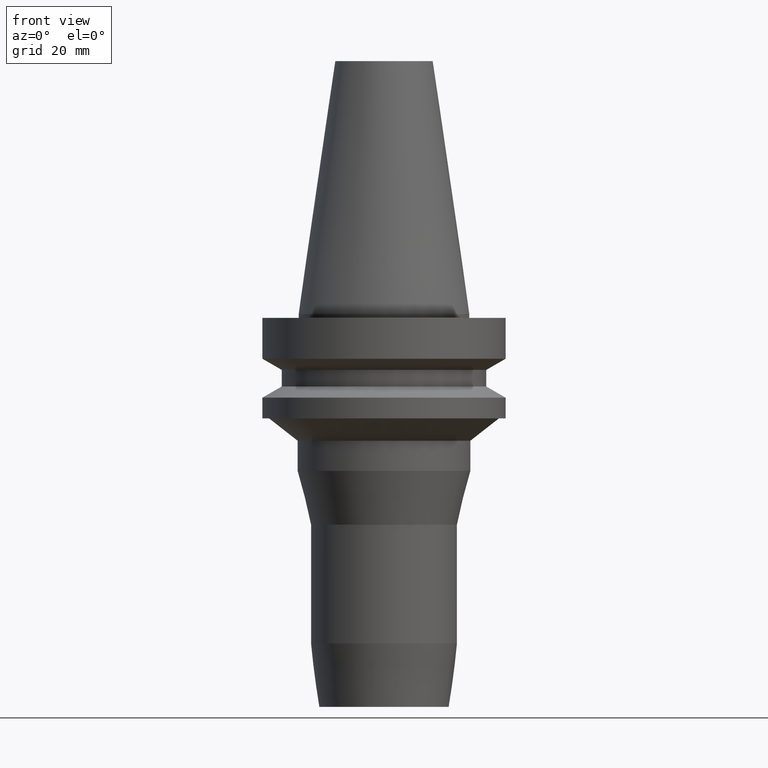
[diagram: clean part render]
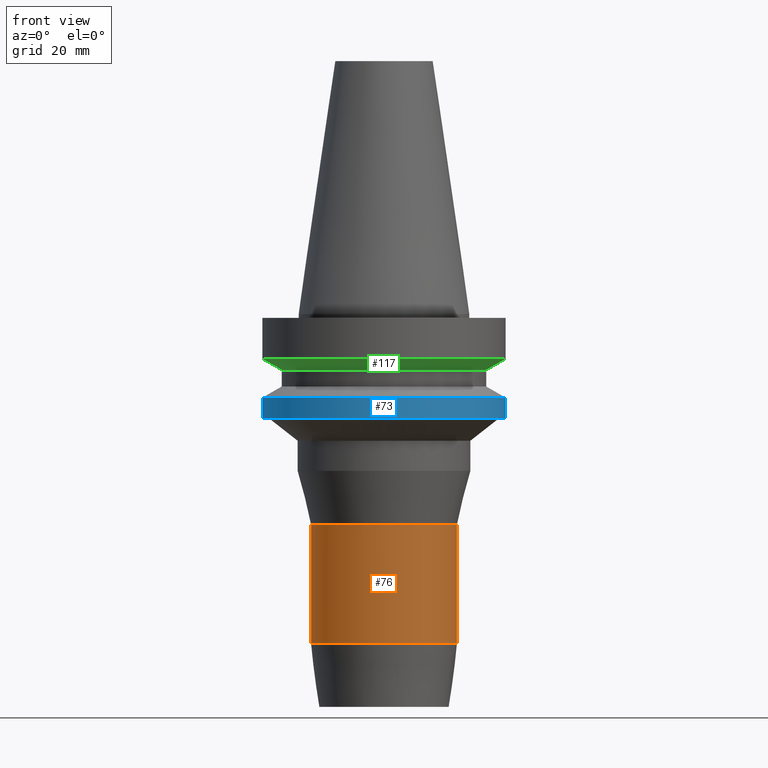
[diagram: same view with three faces highlighted in distinct colors, each labeled with its STEP entity id]
A machine part, front view with three faces highlighted in distinct colors.
Their STEP definitions:

[orange] entity #76 — the highlighted cylindrical surface (bore or boss wall) has radius 19 mm, axis along (0, 0, -1).
#70=EDGE_CURVE('Unnamed[1]',#174,#174,#175,.T.);
#76=ADVANCED_FACE('Unnamed[1]',(#183,#184),#185,.T.);
#104=EDGE_CURVE('Unnamed[1]',#227,#227,#228,.T.);
#174=VERTEX_POINT('',#313);
#175=CIRCLE('',#314,19.0000000000008);
#183=FACE_BOUND('',#324,.T.);
#184=FACE_BOUND('',#325,.T.);
#185=CYLINDRICAL_SURFACE('',#326,19.000000000003);
#227=VERTEX_POINT('',#378);
#228=CIRCLE('',#379,19.0000000000052);
#313=CARTESIAN_POINT('',(5.219149532397E-015,19.0000000000009,-85.2351802336931));
#314=AXIS2_PLACEMENT_3D('',#465,#466,#467);
#324=EDGE_LOOP('',(#475));
#325=EDGE_LOOP('',(#476));
#326=AXIS2_PLACEMENT_3D('',#477,#478,#479);
#378=CARTESIAN_POINT('',(3.3363421698747E-015,19.0000000000053,-54.4866025403829));
#379=AXIS2_PLACEMENT_3D('',#523,#524,#525);
#465=CARTESIAN_POINT('',(5.219149532397E-015,9.5738299064794E-014,-85.2351802336931));
#466=DIRECTION('',(6.12323399573677E-017,1.22464679914745E-016,-1.0));
#467=DIRECTION('',(-1.23259516440778E-032,1.0,1.22464679914745E-016));
#475=ORIENTED_EDGE('',*,*,#70,.F.);
#476=ORIENTED_EDGE('',*,*,#104,.T.);
#477=CARTESIAN_POINT('',(4.27774585113585E-015,9.38554917022717E-014,-69.860891387038));
#478=DIRECTION('',(6.12323399573677E-017,1.2246467991473E-016,-1.0));
#479=DIRECTION('',(-1.23259516440764E-032,1.0,1.2246467991473E-016));
#523=CARTESIAN_POINT('',(3.3363421698747E-015,9.19726843397494E-014,-54.4866025403829));
#524=DIRECTION('',(6.12323399573677E-017,1.22464679914716E-016,-1.0));
#525=DIRECTION('',(-1.23259516440796E-032,1.0,1.22464679914716E-016));

[blue] entity #73 — the highlighted cylindrical surface (bore or boss wall) has radius 31.5 mm, axis along (0, 0, -1).
#58=EDGE_CURVE('Unnamed[1]',#156,#156,#157,.T.);
#68=EDGE_CURVE('Unnamed[1]',#171,#171,#172,.T.);
#73=ADVANCED_FACE('Unnamed[1]',(#178,#179),#180,.T.);
#156=VERTEX_POINT('',#290);
#157=CIRCLE('',#291,31.5000000000006);
#171=VERTEX_POINT('',#309);
#172=CIRCLE('',#310,31.5000000000003);
#178=FACE_BOUND('',#318,.T.);
#179=FACE_BOUND('',#319,.T.);
#180=CYLINDRICAL_SURFACE('',#320,31.5000000000005);
#290=CARTESIAN_POINT('',(1.32473071268174E-015,31.5000000000007,-21.6344943473346));
#291=AXIS2_PLACEMENT_3D('',#445,#446,#447);
#309=CARTESIAN_POINT('',(1.65327317884891E-015,31.5000000000004,-26.9999999999998));
#310=AXIS2_PLACEMENT_3D('',#462,#463,#464);
#318=EDGE_LOOP('',(#469));
#319=EDGE_LOOP('',(#470));
#320=AXIS2_PLACEMENT_3D('',#471,#472,#473);
#445=CARTESIAN_POINT('',(1.32473071268174E-015,8.79494614253635E-014,-21.6344943473346));
#446=DIRECTION('',(6.12323399573677E-017,1.22464679914768E-016,-1.0));
#447=DIRECTION('',(-1.23259516440781E-032,1.0,1.22464679914768E-016));
#462=CARTESIAN_POINT('',(1.65327317884891E-015,8.86065463576978E-014,-26.9999999999998));
#463=DIRECTION('',(6.12323399573677E-017,1.22464679914769E-016,-1.0));
#464=DIRECTION('',(-1.23259516440782E-032,1.0,1.22464679914769E-016));
#469=ORIENTED_EDGE('',*,*,#68,.F.);
#470=ORIENTED_EDGE('',*,*,#58,.T.);
#471=CARTESIAN_POINT('',(1.48900194576533E-015,8.82780038915307E-014,-24.3172471736672));
#472=DIRECTION('',(6.12323399573677E-017,1.22464679914768E-016,-1.0));
#473=DIRECTION('',(-1.23259516440781E-032,1.0,1.22464679914768E-016));

[green] entity #117 — the highlighted conical surface has half-angle 60 deg.
#56=EDGE_CURVE('Unnamed[1]',#153,#153,#154,.T.);
#109=EDGE_CURVE('Unnamed[1]',#235,#235,#236,.T.);
#117=ADVANCED_FACE('Unnamed[1]',(#247,#248),#249,.T.);
#153=VERTEX_POINT('',#286);
#154=CIRCLE('',#287,26.4999999999994);
#235=VERTEX_POINT('',#388);
#236=CIRCLE('',#389,31.5000000000003);
#247=FACE_BOUND('',#403,.T.);
#248=FACE_BOUND('',#404,.T.);
#249=CONICAL_SURFACE('',#405,28.9999999999998,1.04719755119657);
#286=CARTESIAN_POINT('',(8.8494551369045E-016,26.4999999999995,-14.4522569986152));
#287=AXIS2_PLACEMENT_3D('',#442,#443,#444);
#388=CARTESIAN_POINT('',(7.08182973902924E-016,31.5000000000004,-11.5655056526664));
#389=AXIS2_PLACEMENT_3D('',#532,#533,#534);
#403=EDGE_LOOP('',(#545));
#404=EDGE_LOOP('',(#546));
#405=AXIS2_PLACEMENT_3D('',#547,#548,#549);
#442=CARTESIAN_POINT('',(8.8494551369045E-016,8.70698910273809E-014,-14.4522569986152));
#443=DIRECTION('',(6.12323399573676E-017,1.22464679914767E-016,-1.0));
#444=DIRECTION('',(-1.23259516440786E-032,1.0,1.22464679914767E-016));
#532=CARTESIAN_POINT('',(7.08182973902924E-016,8.67163659478059E-014,-11.5655056526664));
#533=DIRECTION('',(6.12323399573677E-017,1.22464679914769E-016,-1.0));
#534=DIRECTION('',(-1.23259516440782E-032,1.0,1.22464679914769E-016));
#545=ORIENTED_EDGE('',*,*,#56,.F.);
#546=ORIENTED_EDGE('',*,*,#109,.T.);
#547=CARTESIAN_POINT('',(7.96564243796687E-016,8.68931284875934E-014,-13.0088813256408));
#548=DIRECTION('',(-6.12323399573677E-017,-1.22464679914712E-016,1.0));
#549=DIRECTION('',(-1.23259516440784E-032,1.0,1.22464679914712E-016));